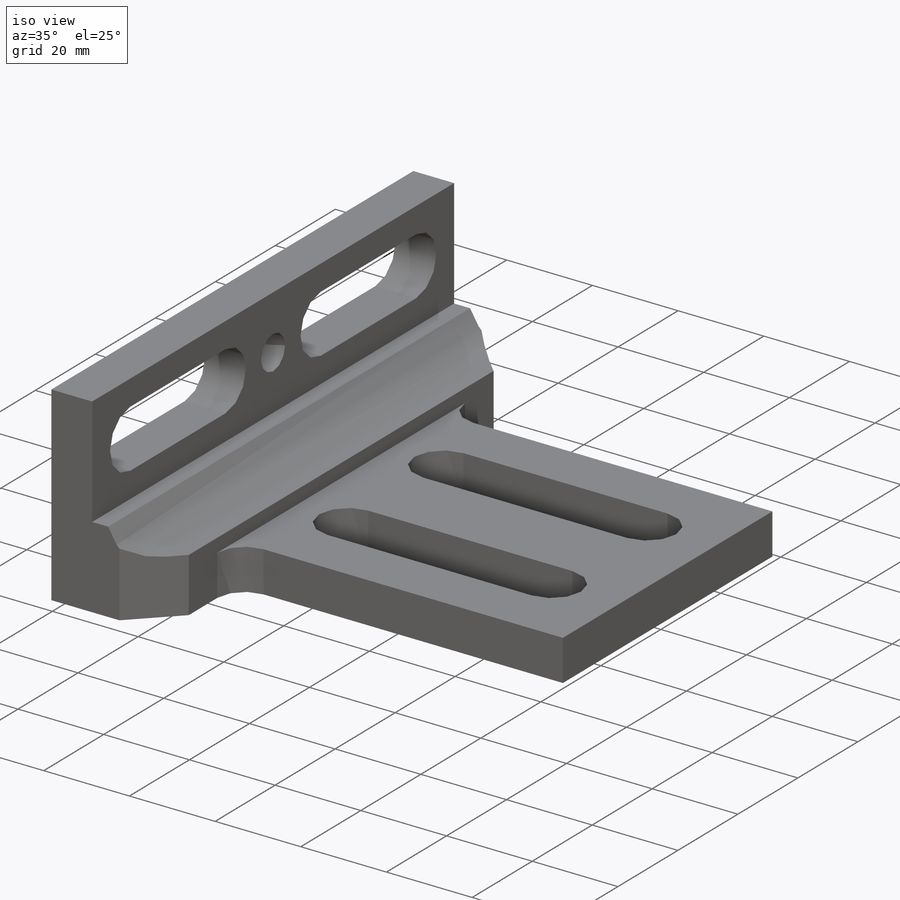
[diagram: iso view]
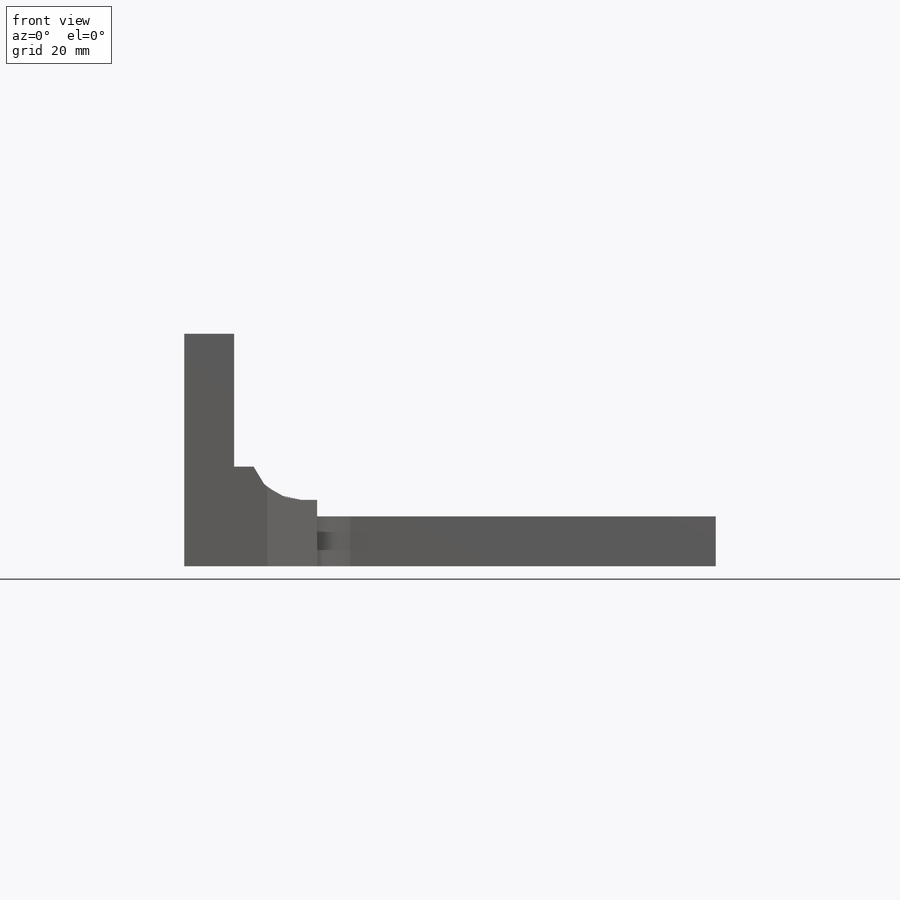
[diagram: front view]
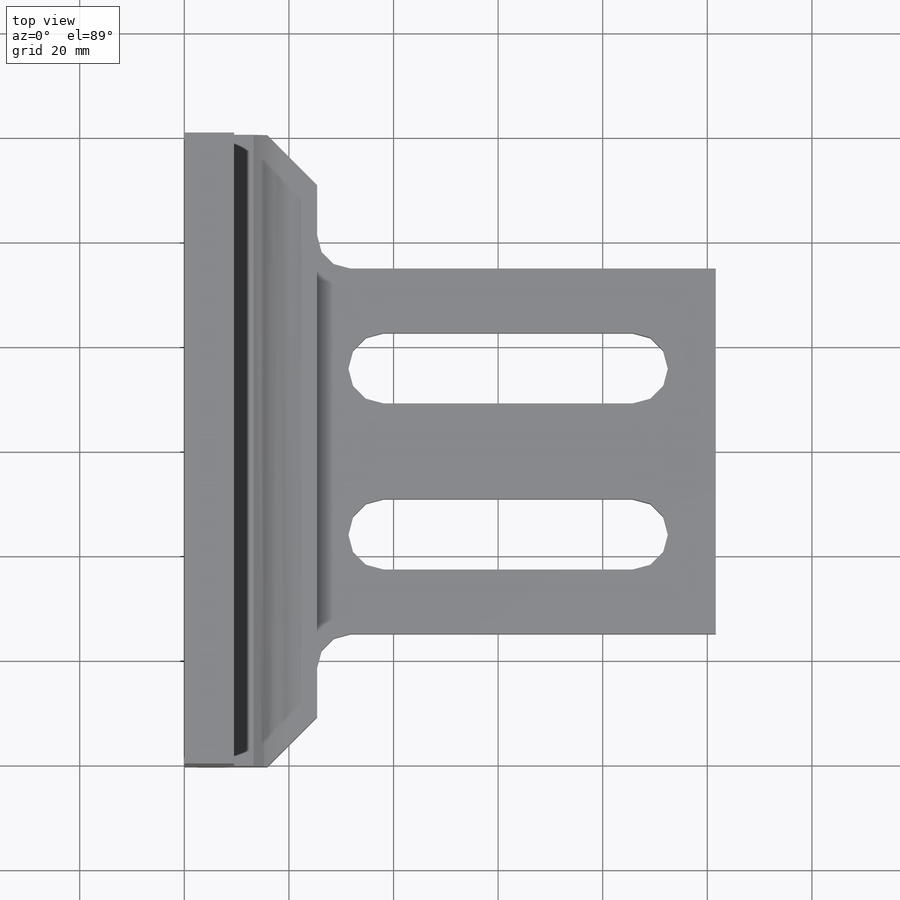
[diagram: top view]
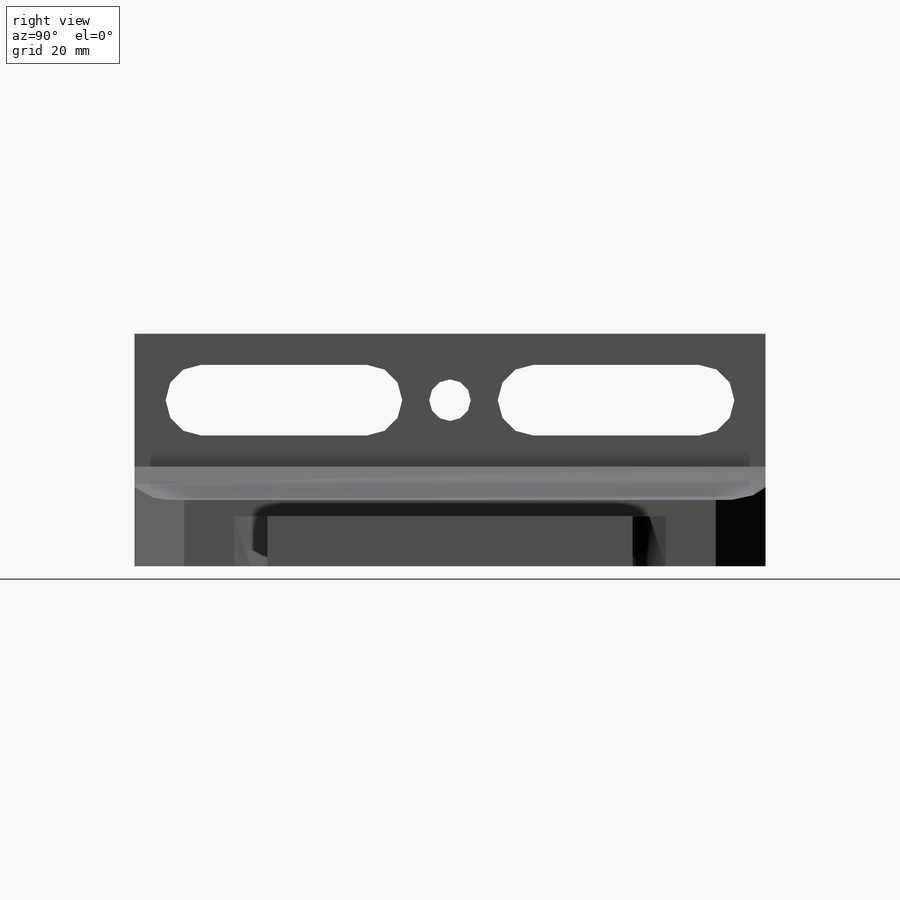
[diagram: right view]
SOLIDWORKS PART (.sldprt)
format: sldprt  version: not decoded by parser v0  size: 366,080 bytes
history: native  units: mm
features: sketch x9, cut_extrude x6, extrude x4, plane x3, mirror x2, material x1, hole x1, thread x1, fillet x1, chamfer x1 (+11 scaffold rows collapsed)
feature tree (40):
  scaffold x11  (default folders/planes/origin — collapsed)
  material  "AISI 1018 Steel, Cold Rolled"
  plane  "Plane1"
  plane  "Plane2"
  plane  "Plane3"
  sketch  "Sketch1"  dims[c1.D2=3.175mm c1.Radius_1=9.525mm c1.Radius_2=9.525mm c1.V_leg=50.8mm c1.H_leg=50.8mm c1.Thickness=12.7mm c1.D1=12.7mm c1.D3=46.0375mm c2.V_leg=101.6mm c2.H_leg=101.6mm c2.Flat_wid=~3.18008mm c2.D3=6.35mm c2.D2=~3.18008mm]
  extrude  "BaseSteelAngle"  Depth=120.65mm Length=120.65mm
  extrude  "ConfigurationName"  Depth=0 CopiedFlag=0
  extrude  "PartNumberID"  [1 undecoded]
  extrude  "ConfigurationName"  Depth=0 CopiedFlag=0
  sketch  "Sketch2"  dims[D1=44.45mm]
  cut_extrude  "Cut-Extrude1"  [1 undecoded]
  sketch  "Sketch4"  dims[c1.D3=~6.74624mm c1.D2=~6.74624mm c1.D4=~6.74624mm c1.D1=15.875mm c2.D2=25.4mm c2.D4=34.925mm c3.D2=38.1mm c3.D4=47.625mm]
  cut_extrude  "Cut-Extrude3"  [1 undecoded]
  mirror  "Mirror1"
  sketch  "Sketch5"  dims[c1.D1=9.525mm c1.D2=63.5mm c1.D3=6.35mm c1.D4=3.175mm c2.D2=25.4mm]
  cut_extrude  "Cut-Extrude4"  [1 undecoded]
  sketch  "Sketch6"  dims[D1=3.175mm D2=25.4mm D3=6.35mm D4=3.175mm]
  cut_extrude  "Cut-Extrude5"  [1 undecoded]
  sketch  "Sketch7"  dims[c1.D4=~6.746875mm c1.D1=9.525mm c1.D2=~5.953125mm c1.D3=31.75mm c2.D1=12.7mm c2.D2=15.875mm c3.D1=12.7mm]
  cut_extrude  "Cut-Extrude6"  [1 undecoded]
  mirror  "Mirror2"
  hole  "3/8-16 Tapped Hole1"  [1 undecoded]
  sketch  "Sketch9"  dims[D1=~12.794913mm]
  thread  "Cosmetic Thread1"  Diameter=9.525mm  [1 undecoded]
  sketch  "Sketch8"  dims[hole-wizard template sketch: 60 standard entries collapsed; hole parameters kept: c18.Thru Tap Drill Depth=9.525mm]
  sketch  "Sketch11"  dims[D1=25.4mm D2=25.4mm]
  cut_extrude  "Cut-Extrude8"  [1 undecoded]
  fillet  "Fillet2"  Radius=6.35mm
  chamfer  "Chamfer3"  Distance=9.525mm Angle=45deg
decode coverage: 15 of 25 modeling features carry decoded parameters
note: ~ marks probable driven/reference dimensions
note: 9 parameter values undecoded
summary: no parameter record found for 8 features
note: suppression state not decoded; provenance and decode notes live in map.json
